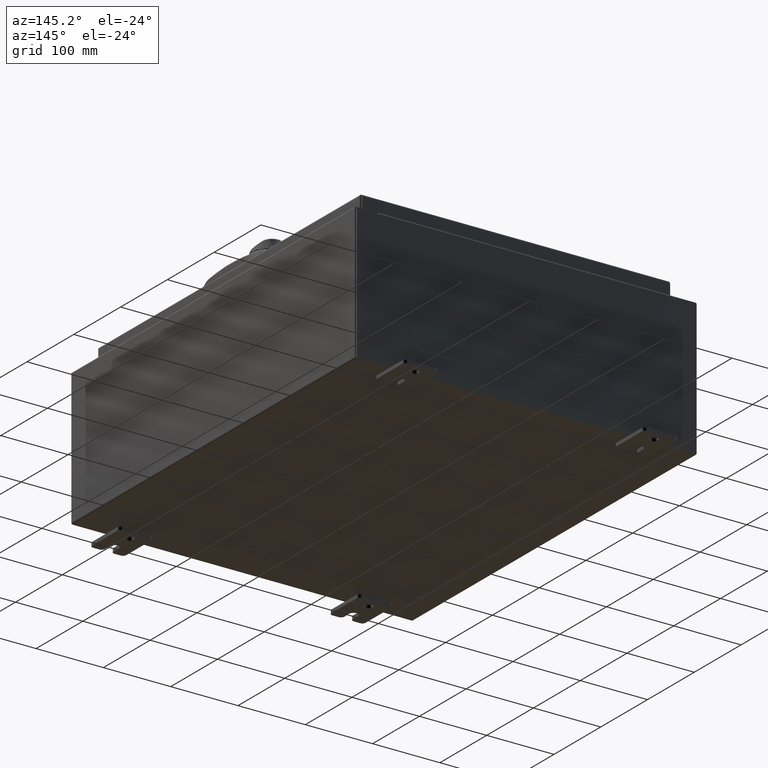
[diagram: clean part render]
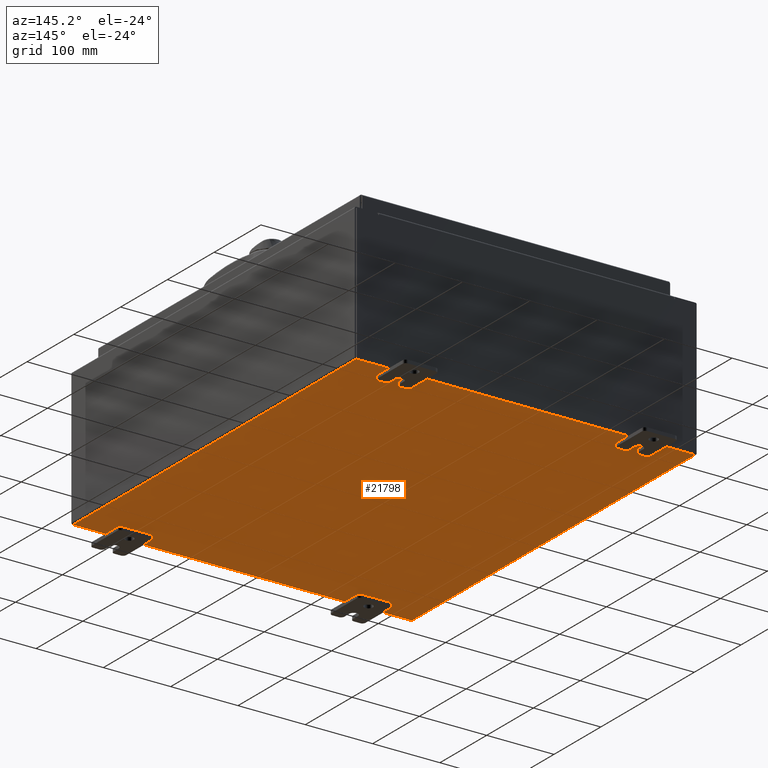
[diagram: same view with one face highlighted and labeled with its STEP entity id]
A machine part, auxiliary view. The second image highlights one B-rep face of the part: STEP entity #21798.
In plain terms, the highlighted planar face has unit normal (0, 0, -1).
Its self-contained STEP definition (entity closure, byte-faithful):
#3238 = DIRECTION ( 'NONE',  ( -0.0000000000000000000, 1.000000000000000000, -0.0000000000000000000 ) ) ;
#6831 = AXIS2_PLACEMENT_3D ( 'NONE', #94049, #85652, #33109 ) ;
#7265 = DIRECTION ( 'NONE',  ( -0.0000000000000000000, -1.000000000000000000, -0.0000000000000000000 ) ) ;
#12320 = VERTEX_POINT ( 'NONE', #85476 ) ;
#16701 = EDGE_CURVE ( 'NONE', #27957, #12320, #75863, .T. ) ;
#21798 = ADVANCED_FACE ( 'NONE', ( #101424 ), #59147, .T. ) ;
#27957 = VERTEX_POINT ( 'NONE', #110777 ) ;
#31334 = CARTESIAN_POINT ( 'NONE',  ( -10.00000000000000000, -11.92530000000000000, -0.07470000000000000300 ) ) ;
#33109 = DIRECTION ( 'NONE',  ( -1.000000000000000000, 0.0000000000000000000, -0.0000000000000000000 ) ) ;
#34669 = VECTOR ( 'NONE', #7265, 39.37007874015748100 ) ;
#36201 = CARTESIAN_POINT ( 'NONE',  ( -10.00000000000000000, 11.92530000000000000, -0.07470000000000000300 ) ) ;
#42824 = ORIENTED_EDGE ( 'NONE', *, *, #71739, .F. ) ;
#43375 = CARTESIAN_POINT ( 'NONE',  ( -9.912300000000000100, -11.92529999999999800, -0.07469999999999994700 ) ) ;
#55720 = VECTOR ( 'NONE', #3238, 39.37007874015748100 ) ;
#59147 = PLANE ( 'NONE',  #6831 ) ;
#60192 = CARTESIAN_POINT ( 'NONE',  ( 9.912300000000000100, 11.92530000000000000, -0.07469999999999994700 ) ) ;
#61430 = VERTEX_POINT ( 'NONE', #43375 ) ;
#64604 = CARTESIAN_POINT ( 'NONE',  ( -9.912300000000000100, -11.92530000000000000, -0.07469999999999994700 ) ) ;
#71739 = EDGE_CURVE ( 'NONE', #27957, #106959, #97380, .T. ) ;
#73782 = ORIENTED_EDGE ( 'NONE', *, *, #78640, .F. ) ;
#74143 = VECTOR ( 'NONE', #97499, 39.37007874015748100 ) ;
#75100 = DIRECTION ( 'NONE',  ( 1.000000000000000000, 0.0000000000000000000, 0.0000000000000000000 ) ) ;
#75477 = ORIENTED_EDGE ( 'NONE', *, *, #16701, .T. ) ;
#75863 = LINE ( 'NONE', #60192, #34669 ) ;
#76076 = EDGE_CURVE ( 'NONE', #61430, #106959, #79077, .T. ) ;
#78640 = EDGE_CURVE ( 'NONE', #61430, #12320, #98784, .T. ) ;
#79077 = LINE ( 'NONE', #64604, #55720 ) ;
#79261 = CARTESIAN_POINT ( 'NONE',  ( -9.912300000000000100, 11.92530000000000000, -0.07470000000000000300 ) ) ;
#85476 = CARTESIAN_POINT ( 'NONE',  ( 9.912300000000000100, -11.92530000000000000, -0.07470000000000000300 ) ) ;
#85652 = DIRECTION ( 'NONE',  ( 0.0000000000000000000, 0.0000000000000000000, -1.000000000000000000 ) ) ;
#87018 = EDGE_LOOP ( 'NONE', ( #73782, #99150, #42824, #75477 ) ) ;
#94049 = CARTESIAN_POINT ( 'NONE',  ( 0.0000000000000000000, 0.0000000000000000000, -0.07470000000000000300 ) ) ;
#96023 = VECTOR ( 'NONE', #75100, 39.37007874015748100 ) ;
#97380 = LINE ( 'NONE', #36201, #74143 ) ;
#97499 = DIRECTION ( 'NONE',  ( -1.000000000000000000, -0.0000000000000000000, -0.0000000000000000000 ) ) ;
#98784 = LINE ( 'NONE', #31334, #96023 ) ;
#99150 = ORIENTED_EDGE ( 'NONE', *, *, #76076, .T. ) ;
#101424 = FACE_OUTER_BOUND ( 'NONE', #87018, .T. ) ;
#106959 = VERTEX_POINT ( 'NONE', #79261 ) ;
#110777 = CARTESIAN_POINT ( 'NONE',  ( 9.912300000000000100, 11.92529999999999800, -0.07469999999999994700 ) ) ;